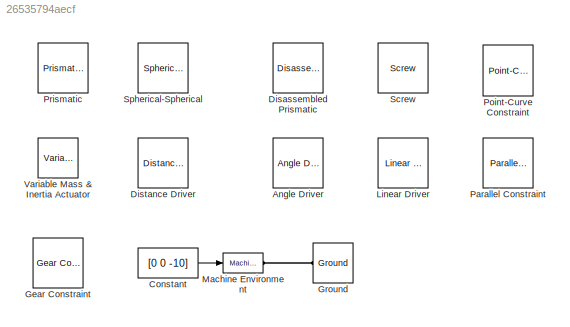
MODEL slx_26535794aecf
KIND model
CONFIG AbsTol = auto
CONFIG FixedStep = auto
CONFIG MaxStep = auto
CONFIG MinStep = auto
CONFIG RelTol = 1e-3
CONFIG SampleTimeConstraint = Unconstrained
CONFIG Solver = ode45
CONFIG SolverMode = SingleTasking
CONFIG SolverName = ode45
CONFIG StartTime = 0.0
CONFIG StopTime = 10.0
BLOCK [Reference] Angle Driver  REF=mblibv1/Constraints & 
Drivers/Angle Driver
  ClassName = AngleDriver
  DialogClass = AngleDriverConstraint
  LConnTagsString = __newl0
  LeftAxis = [1 0 0]
  LeftCsys = WORLD
  NumSAPorts = 0
  Ports = [0, 0, 0, 0, 0, 1, 1]
  RConnTagsString = __newr0
  RightAxis = [1 0 0]
  RightCsys = WORLD
  SourceBlock = mblibv1/Constraints & \nDrivers/Angle Driver
  SourceType = Angle Driver
  UpdateFromCAD = off
BLOCK [Constant] Constant
  Value = [0 0 -10]
BLOCK [Reference] Disassembled Prismatic  REF=mblibv1/Joints/Disassembled Joints/Disassembled Prismatic
  BaseAxis = [1 0 0]
  ClassName = DisassembledPrismatic
  DialogClass = JointBlock
  FollowerAxis = [0 1 0]
  LConnTagsString = __newl0
  Ports = [0, 0, 0, 0, 0, 1, 1]
  PrimitiveProps = Base$WORLD$[1 0 0]$prismatic#Follower$WORLD$[0 1 0]$prismatic
  Primitives = prismatic
  RConnTagsString = __newr0
  SourceBlock = mblibv1/Joints/Disassembled Joints/Disassembled Prismatic
  SourceType = Disassembled Prismatic
  UpdateFromCAD = off
BLOCK [Reference] Distance Driver  REF=mblibv1/Constraints & 
Drivers/Distance Driver
  ClassName = DistanceDriver
  DialogClass = DistanceDriverConstraint
  LConnTagsString = __newl0
  NumSAPorts = 0
  Ports = [0, 0, 0, 0, 0, 1, 1]
  RConnTagsString = __newr0
  SourceBlock = mblibv1/Constraints & \nDrivers/Distance Driver
  SourceType = Distance Driver
  UpdateFromCAD = off
BLOCK [Reference] Gear Constraint  REF=mblibv1/Constraints & 
Drivers/Gear Constraint
  BaseRadius = 1
  BaseRadiusUnits = m
  ClassName = GearConstraint
  DialogClass = GearConstraint
  FollowerRadius = 1
  FollowerRadiusUnits = m
  LConnTagsString = __newl0
  NumSAPorts = 0
  Ports = [0, 0, 0, 0, 0, 1, 1]
  RConnTagsString = __newr0
  SourceBlock = mblibv1/Constraints & \nDrivers/Gear Constraint
  SourceType = Gear Constraint
  UpdateFromCAD = off
BLOCK [Reference] Ground  REF=mblibv1/Bodies/Ground
  ClassName = Ground
  CoordPosition = [0 0 0]
  CoordPositionUnits = m
  DialogClass = GroundBlock
  LeftPortType = env
  MachineId = [0 0]
  ParameterChecksum = [0 0 0 0]
  PhysicalDomain = Mechanical
  Ports = [0, 0, 0, 0, 0, 1, 1]
  RightPortType = workingframe
  ShowEnvPort = on
  SourceBlock = mblibv1/Bodies/Ground
  SourceType = Ground
  StateVectorMgrId = -1
  TopologyChecksum = [0 0 0 0]
  UpdateFromCAD = off
  UserDataPersistent = on
BLOCK [Reference] Linear Driver  REF=mblibv1/Constraints & 
Drivers/Linear Driver
  ClassName = LinearDriver
  DialogClass = LinearDriverConstraint
  GlobalCoordinate = X
  LConnTagsString = __newl0
  NumSAPorts = 0
  Ports = [0, 0, 0, 0, 0, 1, 1]
  RConnTagsString = __newr0
  SourceBlock = mblibv1/Constraints & \nDrivers/Linear Driver
  SourceType = Linear Driver
  UpdateFromCAD = off
BLOCK [Reference] Machine Environment  REF=mblibv1/Bodies/Machine
Environment
  AnalysisType = Forward dynamics
  AngularAssemblyTolerance = 1e-3
  AngularAssemblyToleranceUnits = rad
  BodyColorSelMode = Use model default
  BodyVisualizationType = Use model default body geometries
  ClassName = Environment
  ConstraintAbsTolerance = 1e-4
  ConstraintRelTolerance = 1e-4
  ConstraintSolverType = Stabilizing
  DefaultBodyColor = [1 0 0]
  DialogTemplateClass = MECH.MachineEnvironment
  Dimensionality = Auto-detect
  Gravity = [0 -9.81 0]
  GravityAsSignal = on
  GravityUnits = m/s^2
  LinearAssemblyTolerance = 1e-3
  LinearAssemblyToleranceUnits = m
  PerturbationSize = 1e-5
  PhysicalDomain = Mechanical
  PortType = env
  Ports = [1, 0, 0, 0, 0, 0, 1]
  RedundancyAnalysisTolerance = 1e-14
  RedundancyAnalysisToleranceType = Automatically select tolerance
  SourceBlock = mblibv1/Bodies/Machine\nEnvironment
  SourceType = Machine Environment
  StatePerturbationType = Fixed
  SyncWhenCopied = off
  UseRobustSingularityHandling = off
  VisualizeMachine = on
BLOCK [Reference] Parallel Constraint  REF=mblibv1/Constraints & 
Drivers/Parallel Constraint
  Axis = [1 0 0]
  ClassName = ParallelConstraint
  Csys = WORLD
  DialogClass = ParallelConstraint
  LConnTagsString = __newl0
  NumSAPorts = 0
  Ports = [0, 0, 0, 0, 0, 1, 1]
  RConnTagsString = __newr0
  SourceBlock = mblibv1/Constraints & \nDrivers/Parallel Constraint
  SourceType = Parallel Constraint
  UpdateFromCAD = off
BLOCK [Reference] Point-Curve Constraint  REF=mblibv1/Constraints & 
Drivers/Point-Curve Constraint
  CanExtrapolate = off
  ClassName = PointCurve
  DialogClass = PointCurveConstraint
  EndConditions = periodic
  LConnTagsString = __newl0|SA1
  NumSAPorts = 1
  Ports = [0, 0, 0, 0, 0, 2, 1]
  RConnTagsString = __newr0
  SourceBlock = mblibv1/Constraints & \nDrivers/Point-Curve Constraint
  SourceType = Point-Curve Constraint
  Units = m
  UpdateFromCAD = off
  Xbreaks = [1     0.77547    0.058989    -0.52528    -0.55899    -0.17022     0.65485]
  Ybreaks = [0     0.42955     0.56832     0.29503    -0.12733    -0.36512    -0.39199]
  Zbreaks = [-0.0031056     0.36957     0.56832     0.29503    -0.12733    -0.46273    -0.40062]*0
BLOCK [Reference] Prismatic  REF=mblibv1/Joints/Prismatic
  ClassName = Joint
  CutJoint = off
  DialogClass = JointBlock
  LConnTagsString = __newl0
  MarkAsCut = off
  NumSAPorts = 0
  P1Axis = [1 0 0]
  Ports = [0, 0, 0, 0, 0, 1, 1]
  PrimitiveProps = P1$World$[1 0 0]$prismatic
  Primitives = prismatic
  RConnTagsString = __newr0
  SourceBlock = mblibv1/Joints/Prismatic
  SourceType = Prismatic
  UpdateFromCAD = off
BLOCK [Reference] Screw  REF=mblibv1/Joints/Screw
  ClassName = ScrewJoint
  CutJoint = off
  DialogClass = ScrewJointBlock
  LConnTagsString = __newl0
  MarkAsCut = off
  NumSAPorts = 0
  Pitch = 1
  Ports = [0, 0, 0, 0, 0, 1, 1]
  PrimitiveProps = R1$WORLD$[1 0 0]$revolute
  Primitives = prismatic
  R1Axis = [1 0 0]
  RConnTagsString = __newr0
  SourceBlock = mblibv1/Joints/Screw
  SourceType = Screw
  Units = mm
  UpdateFromCAD = off
BLOCK [Reference] Spherical-Spherical  REF=mblibv1/Joints/Massless Connectors/Spherical-Spherical
  ClassName = MasslessSS
  CutJoint = off
  DialogClass = JointBlock
  LConnTagsString = __newl0
  MarkAsCut = off
  NumSAPorts = 0
  Ports = [0, 0, 0, 0, 0, 1, 1]
  PrimitiveProps = S1$WORLD$[0 0 0]$spherical#S2$WORLD$[0 0 0]$spherical
  Primitives = prismatic
  RConnTagsString = __newr0
  S1Axis = [0 0 0]
  S2Axis = [0 0 0]
  SourceBlock = mblibv1/Joints/Massless Connectors/Spherical-Spherical
  SourceType = Spherical-Spherical
  UpdateFromCAD = off
BLOCK [Reference] Variable Mass & Inertia Actuator  REF=mblibv1/Sensors & 
Actuators/Variable Mass &
Inertia Actuator
  AccelerationUnits = m/s^2
  ActiveIO = off
  ActuationStyle = MassInertia
  AngleUnits = deg
  ArcAccelerationUnits = deg/s^2
  ArcVelocityUnits = deg/s
  ClassName = BodyActuatorMassInertia
  CoordPositionUnits = m
  DialogClass = VariableMassInertiaActuatorBlock
  ForceUnits = N
  Inertia = off
  InertiaUnits = kg*m^2
  Mass = on
  MassUnits = kg
  PhysicalDomain = Mechanical
  PortType = blob
  Ports = [1, 0, 0, 0, 0, 0, 1]
  ReferenceFrame = Local (body CS)
  SourceBlock = mblibv1/Sensors & \nActuators/Variable Mass &\nInertia Actuator
  SourceType = Variable Mass & Inertia Actuator
  TorqueUnits = N-m
  UpdateFromCAD = off
  VelocityUnits = m/s
  Width = 1
LINE Constant:1 -> Machine Environment:1
PLINE Ground:LConn1 -- Machine Environment:RConn1
